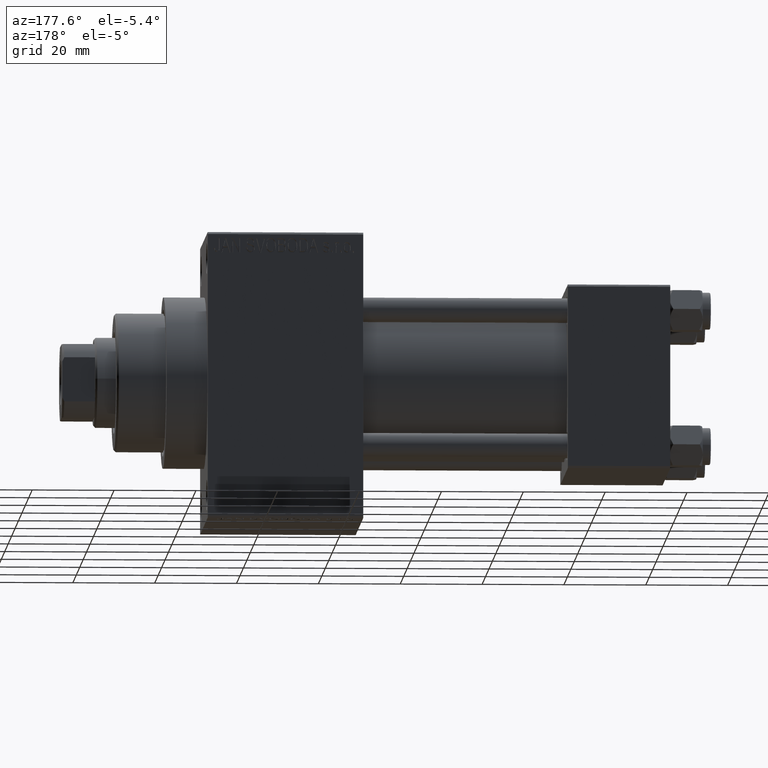
[diagram: clean part render]
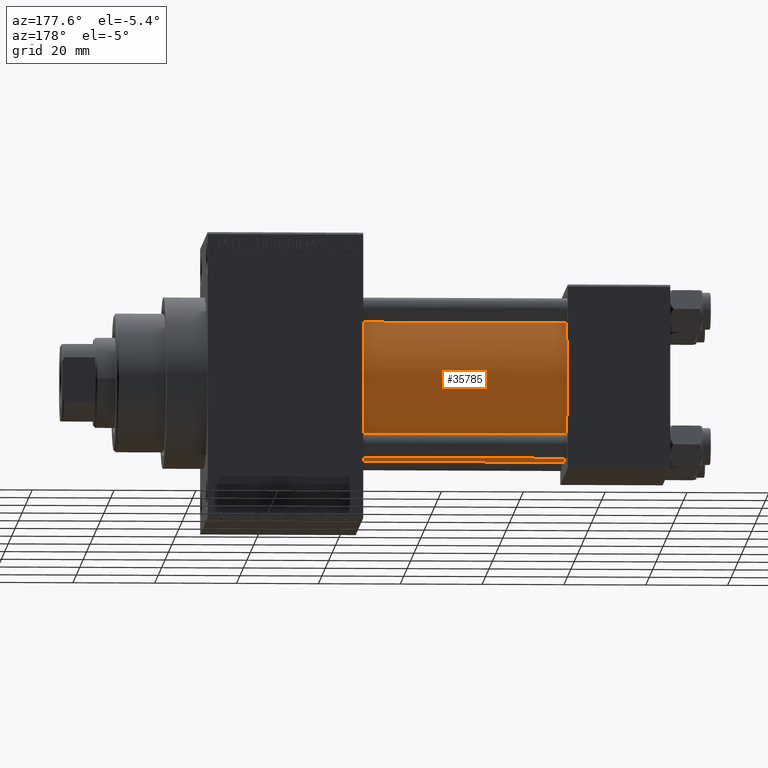
[diagram: same view with one face highlighted and labeled with its STEP entity id]
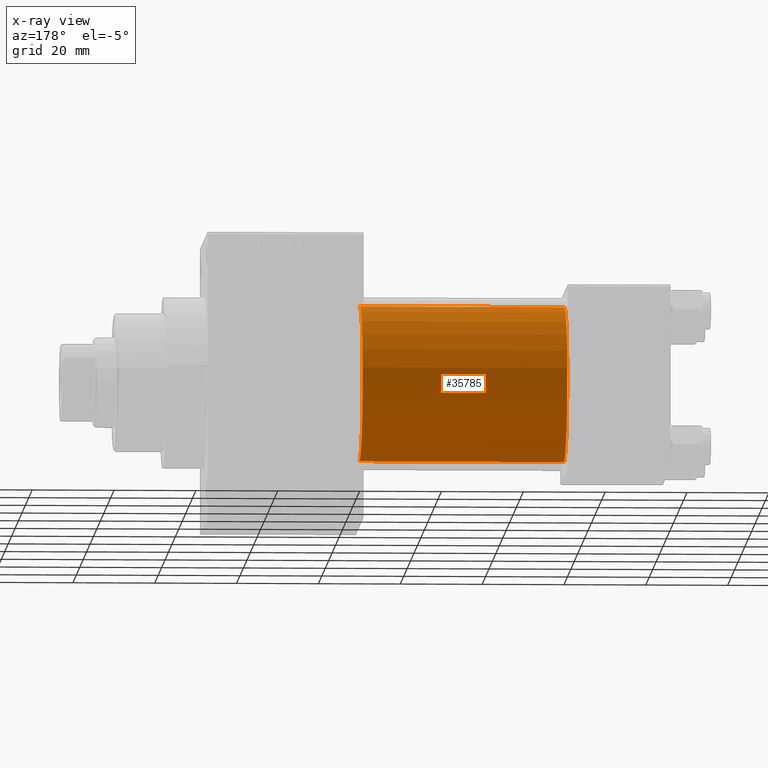
[diagram: x-ray of the same camera — body ghosted, the highlighted face saturated]
A machine part, auxiliary view. The second image highlights one B-rep face of the part: STEP entity #35785.
The next image is the same camera in x-ray: the body ghosted, the highlighted face saturated — about 0% of this face is hidden behind the body in this view.
In plain terms, the highlighted cylindrical surface (partial cylindrical patch) has radius 19 mm, axis along (-1, -0, -0).
Its self-contained STEP definition (entity closure, byte-faithful):
#492 = VERTEX_POINT ( 'NONE', #20081 ) ;
#494 = DIRECTION ( 'NONE',  ( -1.000000000000000000, -0.000000000000000000, -0.000000000000000000 ) ) ;
#966 = CARTESIAN_POINT ( 'NONE',  ( 75.00000000000001421, -2.602085213965210642E-15, 19.00000000000000000 ) ) ;
#2407 = CARTESIAN_POINT ( 'NONE',  ( 75.00000000000001421, -2.602085213965210642E-15, 0.000000000000000000 ) ) ;
#3421 = FACE_OUTER_BOUND ( 'NONE', #37577, .T. ) ;
#3429 = AXIS2_PLACEMENT_3D ( 'NONE', #15075, #7458, #33207 ) ;
#7458 = DIRECTION ( 'NONE',  ( -1.000000000000000000, -0.000000000000000000, -0.000000000000000000 ) ) ;
#8573 = LINE ( 'NONE', #966, #39425 ) ;
#9748 = DIRECTION ( 'NONE',  ( 1.000000000000000000, -0.000000000000000000, 0.000000000000000000 ) ) ;
#11495 = CYLINDRICAL_SURFACE ( 'NONE', #3429, 19.00000000000000000 ) ;
#13298 = CIRCLE ( 'NONE', #46869, 19.00000000000000000 ) ;
#14183 = VERTEX_POINT ( 'NONE', #42729 ) ;
#15075 = CARTESIAN_POINT ( 'NONE',  ( 75.00000000000001421, -2.602085213965210642E-15, 0.000000000000000000 ) ) ;
#17551 = CIRCLE ( 'NONE', #27424, 19.00000000000000000 ) ;
#18116 = ORIENTED_EDGE ( 'NONE', *, *, #21869, .F. ) ;
#20081 = CARTESIAN_POINT ( 'NONE',  ( 25.00000000000000000, -2.752562955852396712E-16, -19.00000000000000000 ) ) ;
#21869 = EDGE_CURVE ( 'NONE', #30743, #14183, #17551, .T. ) ;
#23812 = DIRECTION ( 'NONE',  ( 0.000000000000000000, 0.000000000000000000, 1.000000000000000000 ) ) ;
#27412 = DIRECTION ( 'NONE',  ( -1.000000000000000000, -0.000000000000000000, -0.000000000000000000 ) ) ;
#27424 = AXIS2_PLACEMENT_3D ( 'NONE', #2407, #31724, #35779 ) ;
#27893 = ORIENTED_EDGE ( 'NONE', *, *, #42734, .F. ) ;
#30743 = VERTEX_POINT ( 'NONE', #37809 ) ;
#30901 = CARTESIAN_POINT ( 'NONE',  ( 25.00000000000000000, -2.602085213965210642E-15, 19.00000000000000000 ) ) ;
#31724 = DIRECTION ( 'NONE',  ( 1.000000000000000000, 0.000000000000000000, 0.000000000000000000 ) ) ;
#33207 = DIRECTION ( 'NONE',  ( 0.000000000000000000, 0.000000000000000000, 1.000000000000000000 ) ) ;
#34388 = VERTEX_POINT ( 'NONE', #30901 ) ;
#35779 = DIRECTION ( 'NONE',  ( 0.000000000000000000, 0.000000000000000000, -1.000000000000000000 ) ) ;
#35785 = ADVANCED_FACE ( 'NONE', ( #3421 ), #11495, .T. ) ;
#35938 = EDGE_CURVE ( 'NONE', #492, #34388, #13298, .T. ) ;
#36888 = ORIENTED_EDGE ( 'NONE', *, *, #35938, .T. ) ;
#37577 = EDGE_LOOP ( 'NONE', ( #18116, #37886, #36888, #27893 ) ) ;
#37809 = CARTESIAN_POINT ( 'NONE',  ( 75.00000000000001421, -2.752562955852396712E-16, -19.00000000000000000 ) ) ;
#37886 = ORIENTED_EDGE ( 'NONE', *, *, #41519, .T. ) ;
#38607 = VECTOR ( 'NONE', #494, 1000.000000000000000 ) ;
#38623 = CARTESIAN_POINT ( 'NONE',  ( 25.00000000000000000, -2.602085213965210642E-15, 0.000000000000000000 ) ) ;
#39425 = VECTOR ( 'NONE', #27412, 1000.000000000000000 ) ;
#40091 = LINE ( 'NONE', #41032, #38607 ) ;
#41032 = CARTESIAN_POINT ( 'NONE',  ( 75.00000000000001421, -2.752562955852396712E-16, -19.00000000000000000 ) ) ;
#41519 = EDGE_CURVE ( 'NONE', #30743, #492, #40091, .T. ) ;
#42729 = CARTESIAN_POINT ( 'NONE',  ( 75.00000000000001421, -2.602085213965210642E-15, 19.00000000000000000 ) ) ;
#42734 = EDGE_CURVE ( 'NONE', #14183, #34388, #8573, .T. ) ;
#46869 = AXIS2_PLACEMENT_3D ( 'NONE', #38623, #9748, #23812 ) ;